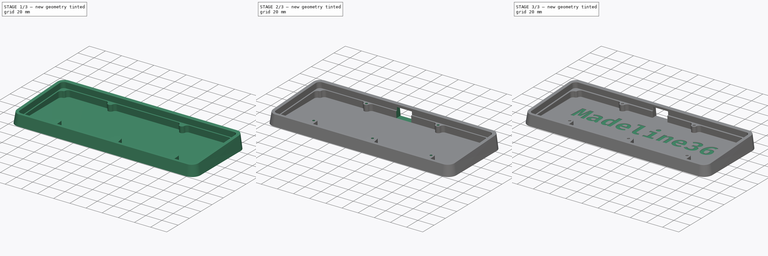
[diagram: build sequence overview — one tinted view per stage of 3, left to right]
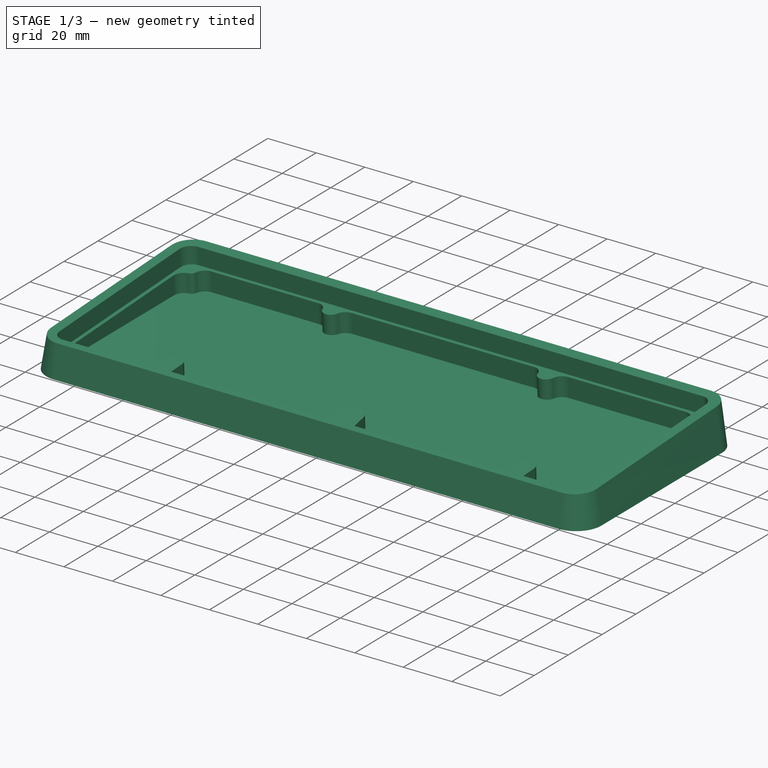
[diagram: stage 1 of 3 — iso view after this stage's code; geometry added in this stage tinted green]
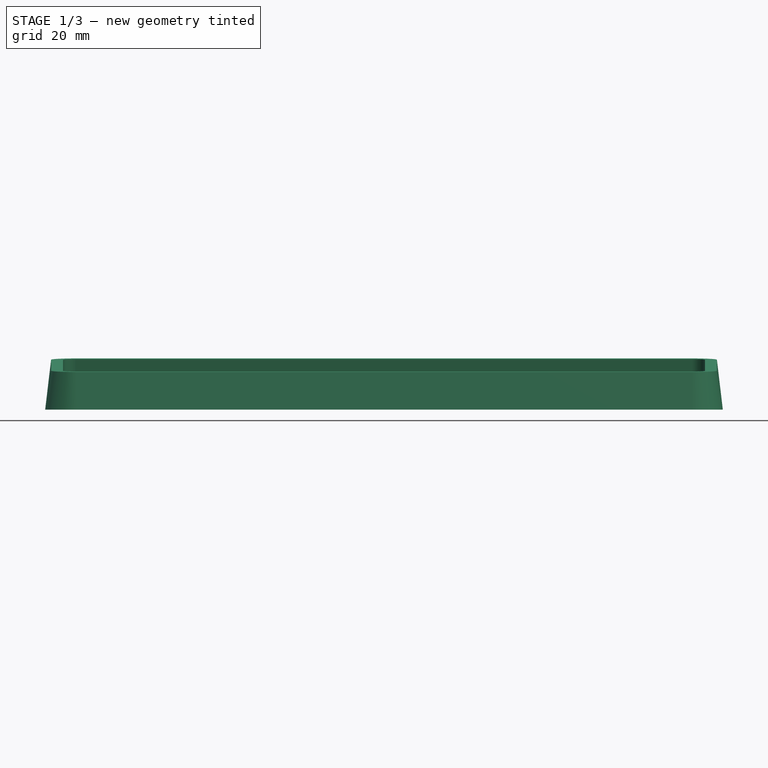
[diagram: stage 1 of 3 — front view after this stage's code; geometry added in this stage tinted green]
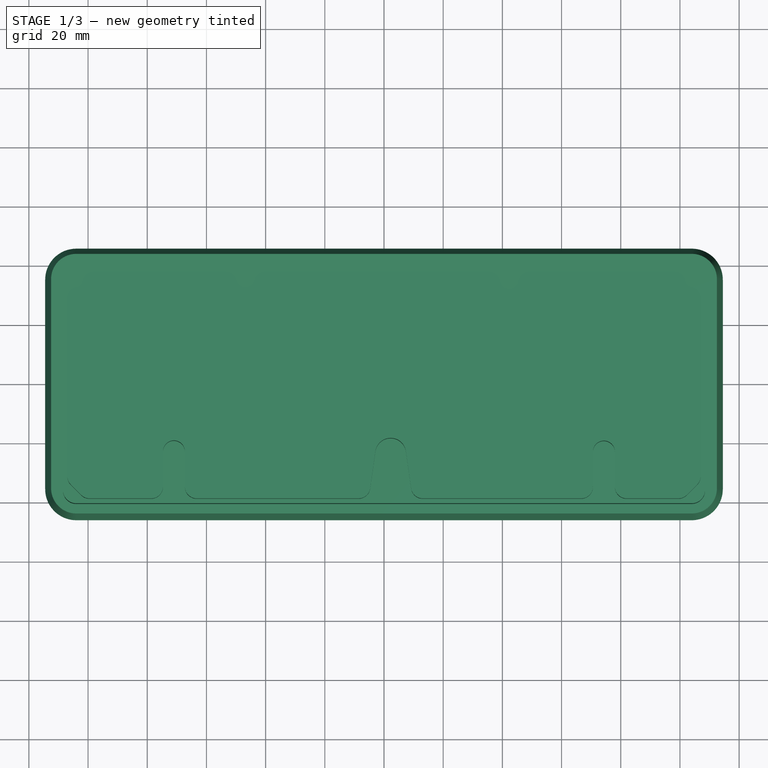
[diagram: stage 1 of 3 — top view after this stage's code; geometry added in this stage tinted green]
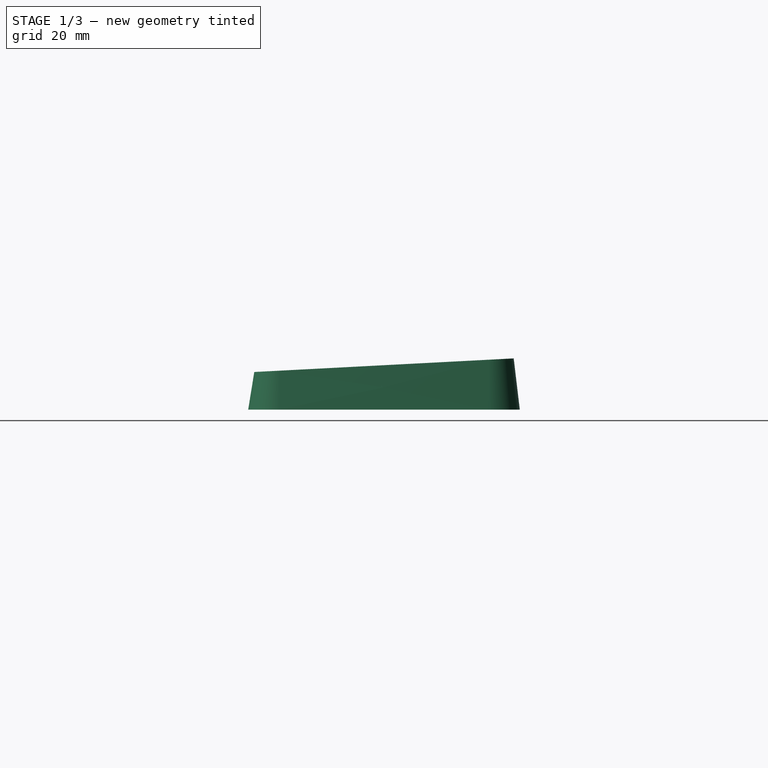
[diagram: stage 1 of 3 — right view after this stage's code; geometry added in this stage tinted green]
FCSTD DOCUMENT  (FreeCAD 1.0R)
Label: case
License: All rights reserved
LicenseURL: https://en.wikipedia.org/wiki/All_rights_reserved
objects: Sketcher::SketchObject×7, PartDesign::Pocket×4, PartDesign::AdditiveLoft×1, PartDesign::Hole×1, PartDesign::Chamfer×1, PartDesign::Fillet×1, PartDesign::Body×1
note: 39 computed .brp shape members not serialized (recipe doc carries the construction recipe); baked Part::Feature solids carry a one-line shape summary decoded from their .brp

FEATURE [Sketcher::SketchObject] Sketch
  ArcFitTolerance = 1e-06
  AttachmentSupport = -> [XY_Plane]
  FullyConstrained = false
  MakeInternals = false
  MapMode = 5
  sketch-geometry (8):
    g0: LineSegment StartX=114.485 StartY=-35.3883 StartZ=0 EndX=114.485 EndY=35.3883 EndZ=0
    g1: ArcOfCircle CenterX=103.985 CenterY=35.3883 CenterZ=0 NormalX=0 NormalY=0 NormalZ=1 AngleXU=0 Radius=10.5 StartAngle=0 EndAngle=1.5708
    g2: LineSegment StartX=-103.985 StartY=45.8883 StartZ=0 EndX=103.985 EndY=45.8883 EndZ=0
    g3: ArcOfCircle CenterX=-103.985 CenterY=35.3883 CenterZ=0 NormalX=0 NormalY=0 NormalZ=1 AngleXU=0 Radius=10.5 StartAngle=1.5708 EndAngle=3.14159
    g4: LineSegment StartX=-114.485 StartY=-35.3883 StartZ=0 EndX=-114.485 EndY=35.3883 EndZ=0
    g5: ArcOfCircle CenterX=-103.985 CenterY=-35.3883 CenterZ=0 NormalX=0 NormalY=0 NormalZ=1 AngleXU=0 Radius=10.5 StartAngle=3.14159 EndAngle=4.71239
    g6: LineSegment StartX=-103.985 StartY=-45.8883 StartZ=0 EndX=103.985 EndY=-45.8883 EndZ=0
    g7: ArcOfCircle CenterX=103.985 CenterY=-35.3883 CenterZ=0 NormalX=0 NormalY=0 NormalZ=1 AngleXU=0 Radius=10.5 StartAngle=4.71239 EndAngle=6.28319
  constraints (8):
    c: Coincident(g4,g5)
    c: Coincident(g3,g4)
    c: Coincident(g5,g6)
    c: Coincident(g2,g3)
    c: Coincident(g6,g7)
    c: Coincident(g1,g2)
    c: Coincident(g0,g7)
    c: Coincident(g0,g1)
FEATURE [Sketcher::SketchObject] Sketch001
  ArcFitTolerance = 1e-06
  AttachmentOffset = pos=(0,0,15) rot=(1,0,0;0.05236rad)
  AttachmentSupport = -> [XY_Plane]
  FullyConstrained = false
  MakeInternals = false
  MapMode = 5
  Placement = pos=(0,0,15) rot=(1,0,0;0.05236rad)
  sketch-geometry (8):
    g0: ArcOfCircle CenterX=-103.985 CenterY=35.3883 CenterZ=0 NormalX=0 NormalY=0 NormalZ=1 AngleXU=0 Radius=8.5 StartAngle=1.5708 EndAngle=3.14159
    g1: LineSegment StartX=-103.985 StartY=43.8883 StartZ=0 EndX=103.985 EndY=43.8883 EndZ=0
    g2: LineSegment StartX=-112.485 StartY=-35.3883 StartZ=0 EndX=-112.485 EndY=35.3883 EndZ=0
    g3: ArcOfCircle CenterX=-103.985 CenterY=-35.3883 CenterZ=0 NormalX=0 NormalY=0 NormalZ=1 AngleXU=0 Radius=8.5 StartAngle=3.14159 EndAngle=4.71239
    g4: LineSegment StartX=-103.985 StartY=-43.8883 StartZ=0 EndX=103.985 EndY=-43.8883 EndZ=0
    g5: ArcOfCircle CenterX=103.985 CenterY=-35.3883 CenterZ=0 NormalX=0 NormalY=0 NormalZ=1 AngleXU=0 Radius=8.5 StartAngle=4.71239 EndAngle=6.28319
    g6: LineSegment StartX=112.485 StartY=-35.3883 StartZ=0 EndX=112.485 EndY=35.3883 EndZ=0
    g7: ArcOfCircle CenterX=103.985 CenterY=35.3883 CenterZ=0 NormalX=0 NormalY=0 NormalZ=1 AngleXU=0 Radius=8.5 StartAngle=0 EndAngle=1.5708
  constraints (8):
    c: Coincident(g2,g3)
    c: Coincident(g0,g2)
    c: Coincident(g3,g4)
    c: Coincident(g0,g1)
    c: Coincident(g4,g5)
    c: Coincident(g1,g7)
    c: Coincident(g5,g6)
    c: Coincident(g6,g7)
FEATURE [PartDesign::AdditiveLoft] AdditiveLoft
  Closed = true
  Profile = -> Sketch
  Refine = true
  Ruled = true
  Sections = -> [Sketch001]
  Suppressed = false
FEATURE [Sketcher::SketchObject] Sketch003
  ArcFitTolerance = 1e-06
  AttachmentSupport = -> [AdditiveLoft]
  FullyConstrained = false
  MakeInternals = false
  MapMode = 5
  Placement = pos=(0,-0.783963,14.9589) rot=(1,0,0;0.05236rad)
  sketch-geometry (8):
    g0: ArcOfCircle CenterX=-103.985 CenterY=35.3883 CenterZ=0 NormalX=0 NormalY=0 NormalZ=1 AngleXU=0 Radius=4.5 StartAngle=1.5708 EndAngle=3.14159
    g1: LineSegment StartX=-103.985 StartY=39.8883 StartZ=0 EndX=103.985 EndY=39.8883 EndZ=0
    g2: ArcOfCircle CenterX=103.985 CenterY=35.3883 CenterZ=0 NormalX=0 NormalY=0 NormalZ=1 AngleXU=0 Radius=4.5 StartAngle=0 EndAngle=1.5708
    g3: LineSegment StartX=108.485 StartY=-35.3883 StartZ=0 EndX=108.485 EndY=35.3883 EndZ=0
    g4: ArcOfCircle CenterX=103.985 CenterY=-35.3883 CenterZ=0 NormalX=0 NormalY=0 NormalZ=1 AngleXU=0 Radius=4.5 StartAngle=4.71239 EndAngle=6.28319
    g5: LineSegment StartX=-103.985 StartY=-39.8883 StartZ=0 EndX=103.985 EndY=-39.8883 EndZ=0
    g6: ArcOfCircle CenterX=-103.985 CenterY=-35.3883 CenterZ=0 NormalX=0 NormalY=0 NormalZ=1 AngleXU=0 Radius=4.5 StartAngle=3.14159 EndAngle=4.71239
    g7: LineSegment StartX=-108.485 StartY=-35.3883 StartZ=0 EndX=-108.485 EndY=35.3883 EndZ=0
  constraints (8):
    c: Coincident(g6,g7)
    c: Coincident(g0,g7)
    c: Coincident(g5,g6)
    c: Coincident(g0,g1)
    c: Coincident(g4,g5)
    c: Coincident(g1,g2)
    c: Coincident(g3,g4)
    c: Coincident(g2,g3)
FEATURE [PartDesign::Pocket] Pocket
  BaseFeature = -> AdditiveLoft
  Direction = (0,0.052336,-0.99863)
  Length = 7
  Length2 = 5
  Offset = -3
  Profile = -> Sketch003
  ReferenceAxis = -> Sketch003 [N_Axis]
  Refine = true
  Suppressed = false
  Type = 0
FEATURE [Sketcher::SketchObject] Sketch002
  ArcFitTolerance = 1e-06
  AttachmentSupport = -> [Pocket]
  FullyConstrained = false
  MakeInternals = false
  MapMode = 5
  Placement = pos=(0,-0.417612,7.96851) rot=(1,0,0;0.05236rad)
  sketch-geometry (42):
    g0: ArcOfCircle CenterX=-97.8659 CenterY=34.3883 CenterZ=0 NormalX=0 NormalY=0 NormalZ=1 AngleXU=0 Radius=4 StartAngle=1.5708 EndAngle=2.97959
    g1: ArcOfCircle CenterX=-103.985 CenterY=35.3883 CenterZ=0 NormalX=0 NormalY=0 NormalZ=1 AngleXU=0 Radius=2.2 StartAngle=4.87439 EndAngle=6.12119
    g2: ArcOfCircle CenterX=-102.985 CenterY=29.2695 CenterZ=0 NormalX=0 NormalY=0 NormalZ=1 AngleXU=0 Radius=4 StartAngle=1.73279 EndAngle=3.14159
    g3: ArcOfCircle CenterX=97.8659 CenterY=34.3883 CenterZ=0 NormalX=0 NormalY=0 NormalZ=1 AngleXU=0 Radius=4 StartAngle=0.161998 EndAngle=1.5708
    g4: ArcOfCircle CenterX=103.985 CenterY=35.3883 CenterZ=0 NormalX=0 NormalY=0 NormalZ=1 AngleXU=0 Radius=2.2 StartAngle=3.30359 EndAngle=4.55039
    g5: ArcOfCircle CenterX=102.985 CenterY=29.2695 CenterZ=0 NormalX=0 NormalY=0 NormalZ=1 AngleXU=0 Radius=4 StartAngle=0 EndAngle=1.4088
    g6: ArcOfCircle CenterX=2.25 CenterY=-23.1801 CenterZ=0 NormalX=0 NormalY=0 NormalZ=1 AngleXU=0 Radius=5.2 StartAngle=0.139626 EndAngle=3.00197
    g7: LineSegment StartX=7.39939 StartY=-22.4564 StartZ=0 EndX=9.15456 EndY=-34.945 EndZ=0
    g8: ArcOfCircle CenterX=13.1156 CenterY=-34.3883 CenterZ=0 NormalX=0 NormalY=0 NormalZ=1 AngleXU=0 Radius=4 StartAngle=3.28122 EndAngle=4.71239
    g9: LineSegment StartX=-2.89939 StartY=-22.4564 StartZ=0 EndX=-4.65456 EndY=-34.945 EndZ=0
    g10: ArcOfCircle CenterX=-8.61563 CenterY=-34.3883 CenterZ=0 NormalX=0 NormalY=0 NormalZ=1 AngleXU=0 Radius=4 StartAngle=4.71239 EndAngle=6.14356
    g11: ArcOfCircle CenterX=-39.871 CenterY=34.3883 CenterZ=0 NormalX=0 NormalY=0 NormalZ=1 AngleXU=0 Radius=4 StartAngle=1.5708 EndAngle=2.87279
    g12: ArcOfCircle CenterX=-46.8124 CenterY=36.3005 CenterZ=0 NormalX=0 NormalY=0 NormalZ=1 AngleXU=0 Radius=3.2 StartAngle=3.4104 EndAngle=6.01438
    g13: LineSegment StartX=-97.8659 StartY=38.3883 StartZ=0 EndX=-53.7539 EndY=38.3883 EndZ=0
    g14: ArcOfCircle CenterX=-53.7539 CenterY=34.3883 CenterZ=0 NormalX=0 NormalY=0 NormalZ=1 AngleXU=0 Radius=4 StartAngle=0.268804 EndAngle=1.5708
    g15: LineSegment StartX=49.3962 StartY=38.3883 StartZ=0 EndX=97.8659 EndY=38.3883 EndZ=0
    g16: ArcOfCircle CenterX=49.3962 CenterY=34.3883 CenterZ=0 NormalX=0 NormalY=0 NormalZ=1 AngleXU=0 Radius=4 StartAngle=1.5708 EndAngle=2.96203
    g17: ArcOfCircle CenterX=42.312 CenterY=35.6742 CenterZ=0 NormalX=0 NormalY=0 NormalZ=1 AngleXU=0 Radius=3.2 StartAngle=3.32115 EndAngle=6.10363
    g18: LineSegment StartX=-39.871 StartY=38.3883 StartZ=0 EndX=35.2278 EndY=38.3883 EndZ=0
    g19: ArcOfCircle CenterX=35.2278 CenterY=34.3883 CenterZ=0 NormalX=0 NormalY=0 NormalZ=1 AngleXU=0 Radius=4 StartAngle=0.179558 EndAngle=1.5708
    g20: LineSegment StartX=106.985 StartY=-30.9031 StartZ=0 EndX=106.985 EndY=29.2695 EndZ=0
    g21: ArcOfCircle CenterX=102.985 CenterY=-30.9031 CenterZ=0 NormalX=0 NormalY=0 NormalZ=1 AngleXU=0 Radius=4 StartAngle=5.49779 EndAngle=6.28319
    g22: LineSegment StartX=102.328 StartY=-37.2168 StartZ=0 EndX=105.813 EndY=-33.7315 EndZ=0
    g23: ArcOfCircle CenterX=99.4994 CenterY=-34.3883 CenterZ=0 NormalX=0 NormalY=0 NormalZ=1 AngleXU=0 Radius=4 StartAngle=4.71239 EndAngle=5.49779
    g24: LineSegment StartX=-106.985 StartY=-30.9031 StartZ=0 EndX=-106.985 EndY=29.2695 EndZ=0
    g25: ArcOfCircle CenterX=-102.985 CenterY=-30.9031 CenterZ=0 NormalX=0 NormalY=0 NormalZ=1 AngleXU=0 Radius=4 StartAngle=3.14159 EndAngle=3.92699
    g26: LineSegment StartX=-105.813 StartY=-33.7315 StartZ=0 EndX=-102.328 EndY=-37.2168 EndZ=0
    g27: ArcOfCircle CenterX=-99.4994 CenterY=-34.3883 CenterZ=0 NormalX=0 NormalY=0 NormalZ=1 AngleXU=0 Radius=4 StartAngle=3.92699 EndAngle=4.71239
    g28: ArcOfCircle CenterX=74.3004 CenterY=-22.599 CenterZ=0 NormalX=0 NormalY=0 NormalZ=1 AngleXU=0 Radius=3.7 StartAngle=6.28318 EndAngle=9.42478
    g29: ArcOfCircle CenterX=-70.9834 CenterY=-22.5163 CenterZ=0 NormalX=0 NormalY=0 NormalZ=1 AngleXU=0 Radius=3.7 StartAngle=0 EndAngle=3.14159
    g30: LineSegment StartX=-74.6834 StartY=-22.5163 StartZ=0 EndX=-74.6834 EndY=-34.3883 EndZ=0
    g31: LineSegment StartX=-99.4994 StartY=-38.3883 StartZ=0 EndX=-78.6834 EndY=-38.3883 EndZ=0
    g32: ArcOfCircle CenterX=-78.6834 CenterY=-34.3883 CenterZ=0 NormalX=0 NormalY=0 NormalZ=1 AngleXU=0 Radius=4 StartAngle=4.71239 EndAngle=6.28319
    g33: LineSegment StartX=-67.2834 StartY=-22.5163 StartZ=0 EndX=-67.2834 EndY=-34.3883 EndZ=0
    g34: LineSegment StartX=-63.2834 StartY=-38.3883 StartZ=0 EndX=-8.61563 EndY=-38.3883 EndZ=0
    g35: ArcOfCircle CenterX=-63.2834 CenterY=-34.3883 CenterZ=0 NormalX=0 NormalY=0 NormalZ=1 AngleXU=0 Radius=4 StartAngle=3.14159 EndAngle=4.71239
    g36: LineSegment StartX=78.0004 StartY=-22.599 StartZ=0 EndX=78.0004 EndY=-34.3883 EndZ=0
    g37: LineSegment StartX=82.0004 StartY=-38.3883 StartZ=0 EndX=99.4994 EndY=-38.3883 EndZ=0
    g38: ArcOfCircle CenterX=82.0004 CenterY=-34.3883 CenterZ=0 NormalX=0 NormalY=0 NormalZ=1 AngleXU=0 Radius=4 StartAngle=3.14159 EndAngle=4.71239
    g39: LineSegment StartX=70.6004 StartY=-22.599 StartZ=0 EndX=70.6004 EndY=-34.3883 EndZ=0
    g40: LineSegment StartX=13.1156 StartY=-38.3883 StartZ=0 EndX=66.6004 EndY=-38.3883 EndZ=0
    g41: ArcOfCircle CenterX=66.6004 CenterY=-34.3883 CenterZ=0 NormalX=0 NormalY=0 NormalZ=1 AngleXU=0 Radius=4 StartAngle=4.71239 EndAngle=6.28319
  constraints (42):
    c: Coincident(g24,g25)
    c: Coincident(g2,g24)
    c: Coincident(g25,g26)
    c: Coincident(g1,g2)
    c: Coincident(g26,g27)
    c: Coincident(g0,g1)
    c: Coincident(g27,g31)
    c: Coincident(g0,g13)
    c: Coincident(g31,g32)
    c: Coincident(g30,g32)
    c: Coincident(g29,g30)
    c: Coincident(g33,g35)
    c: Coincident(g29,g33)
    c: Coincident(g34,g35)
    c: Coincident(g13,g14)
    c: Coincident(g12,g14)
    c: Coincident(g11,g12)
    c: Coincident(g11,g18)
    c: Coincident(g10,g34)
    c: Coincident(g9,g10)
    c: Coincident(g6,g9)
    c: Coincident(g6,g7)
    c: Coincident(g7,g8)
    c: Coincident(g8,g40)
    c: Coincident(g18,g19)
    c: Coincident(g17,g19)
    c: Coincident(g16,g17)
    c: Coincident(g15,g16)
    c: Coincident(g40,g41)
    c: Coincident(g39,g41)
    c: Coincident(g28,g39)
    c: Coincident(g36,g38)
    c: Coincident(g28,g36)
    c: Coincident(g37,g38)
    c: Coincident(g3,g15)
    c: Coincident(g23,g37)
    c: Coincident(g3,g4)
    c: Coincident(g22,g23)
    c: Coincident(g4,g5)
    c: Coincident(g21,g22)
    c: Coincident(g20,g21)
    c: Coincident(g5,g20)
FEATURE [PartDesign::Pocket] Pocket001
  BaseFeature = -> Pocket
  Direction = (0,0.052336,-0.99863)
  Length = 0
  Length2 = 5
  Offset = -2
  Profile = -> Sketch002
  ReferenceAxis = -> Sketch002 [N_Axis]
  Refine = true
  Suppressed = false
  Type = 3
  UpToFace = -> Pocket [Face1]
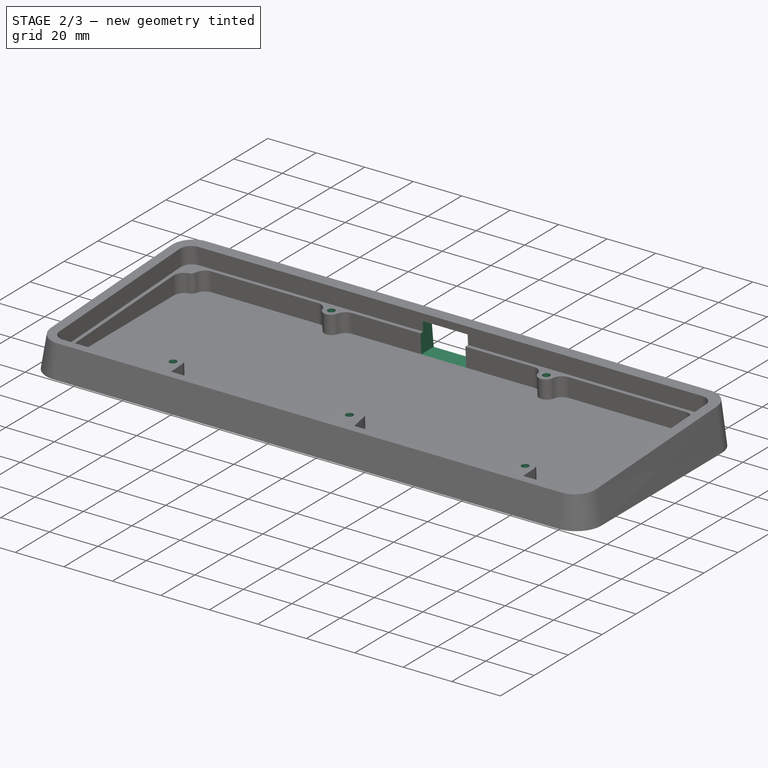
[diagram: stage 2 of 3 — iso view after this stage's code; geometry added in this stage tinted green]
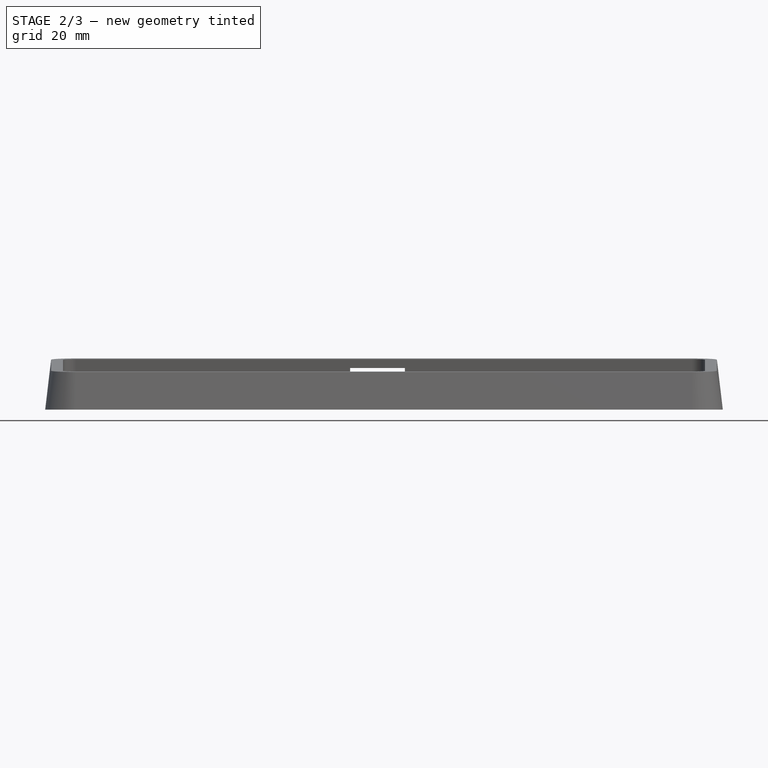
[diagram: stage 2 of 3 — front view after this stage's code; geometry added in this stage tinted green]
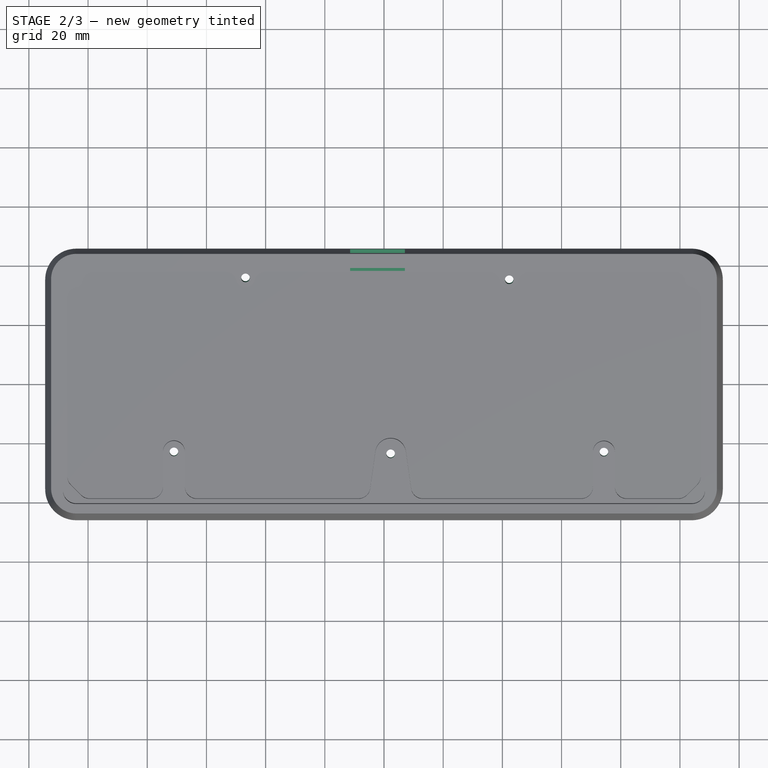
[diagram: stage 2 of 3 — top view after this stage's code; geometry added in this stage tinted green]
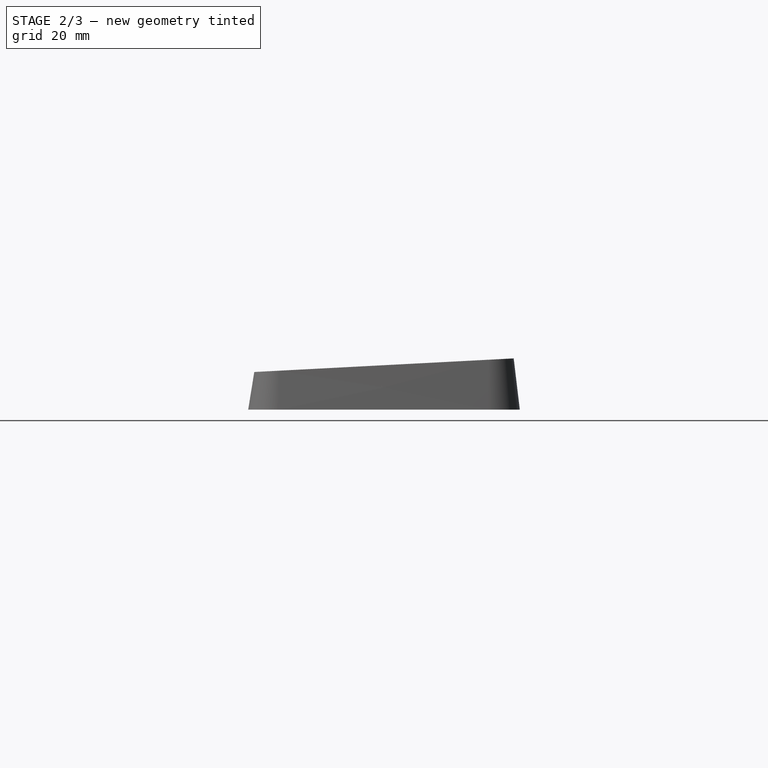
[diagram: stage 2 of 3 — right view after this stage's code; geometry added in this stage tinted green]
FEATURE [Sketcher::SketchObject] Sketch004
  ArcFitTolerance = 1e-06
  AttachmentSupport = -> [Pocket]
  FullyConstrained = false
  MakeInternals = false
  MapMode = 5
  Placement = pos=(0,-0.417612,7.96851) rot=(1,0,0;0.05236rad)
  sketch-geometry (5):
    g0: Circle CenterX=74.3004 CenterY=-22.599 CenterZ=0 NormalX=0 NormalY=0 NormalZ=-1 AngleXU=0 Radius=1.2
    g1: Circle CenterX=-70.9834 CenterY=-22.5163 CenterZ=0 NormalX=0 NormalY=0 NormalZ=-1 AngleXU=0 Radius=1.2
    g2: Circle CenterX=2.25 CenterY=-23.1801 CenterZ=0 NormalX=0 NormalY=0 NormalZ=-1 AngleXU=0 Radius=1.2
    g3: Circle CenterX=-46.8124 CenterY=36.3005 CenterZ=0 NormalX=0 NormalY=0 NormalZ=-1 AngleXU=0 Radius=1.2
    g4: Circle CenterX=42.312 CenterY=35.6742 CenterZ=0 NormalX=0 NormalY=0 NormalZ=-1 AngleXU=0 Radius=1.2
FEATURE [PartDesign::Hole] Hole
  BaseFeature = -> Pocket001
  CustomThreadClearance = 0
  Depth = 499.513
  DepthType = 1
  Diameter = 2.9
  DrillForDepth = false
  DrillPoint = 1
  DrillPointAngle = 118
  HoleCutCountersinkAngle = 90
  HoleCutCustomValues = false
  HoleCutDepth = 0
  HoleCutDiameter = 6.1
  HoleCutType = 0
  ModelThread = false
  Profile = -> Sketch004
  Refine = true
  Suppressed = false
  Tapered = false
  TaperedAngle = 103
  ThreadClass = 0
  ThreadDepth = 499.513
  ThreadDepthType = 0
  ThreadDirection = 0
  ThreadFit = 0
  ThreadSize = 8
  ThreadType = 1
  Threaded = false
  UseCustomThreadClearance = false
FEATURE [Sketcher::SketchObject] Sketch005
  ArcFitTolerance = 1e-06
  AttachmentSupport = -> [Pocket001]
  FullyConstrained = false
  MakeInternals = false
  MapMode = 5
  Placement = pos=(0,0,1.99726) rot=(0,0,1;0rad)
  sketch-geometry (4):
    g0: LineSegment StartX=-11.4562 StartY=60.0354 StartZ=0 EndX=-11.4562 EndY=36.0354 EndZ=0
    g1: LineSegment StartX=-11.4562 StartY=36.0354 StartZ=0 EndX=7.04379 EndY=36.0354 EndZ=0
    g2: LineSegment StartX=7.04379 StartY=36.0354 StartZ=0 EndX=7.04379 EndY=60.0354 EndZ=0
    g3: LineSegment StartX=7.04379 StartY=60.0354 StartZ=0 EndX=-11.4562 EndY=60.0354 EndZ=0
  constraints (4):
    c: Coincident(g0,g1)
    c: Coincident(g0,g3)
    c: Coincident(g1,g2)
    c: Coincident(g2,g3)
FEATURE [PartDesign::Pocket] Pocket002
  BaseFeature = -> Hole
  Direction = (0,0,-1)
  Length = 0
  Length2 = 5
  Offset = 4
  Profile = -> Sketch005
  ReferenceAxis = -> Sketch005 [N_Axis]
  Refine = true
  Suppressed = false
  Type = 3
  UpToFace = -> Hole [Face16]
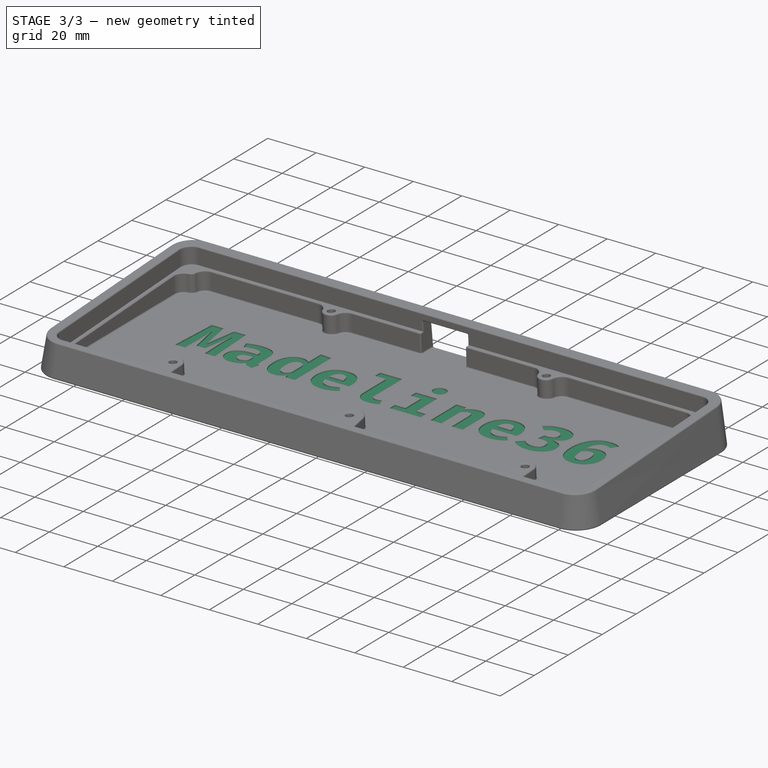
[diagram: stage 3 of 3 — iso view after this stage's code; geometry added in this stage tinted green]
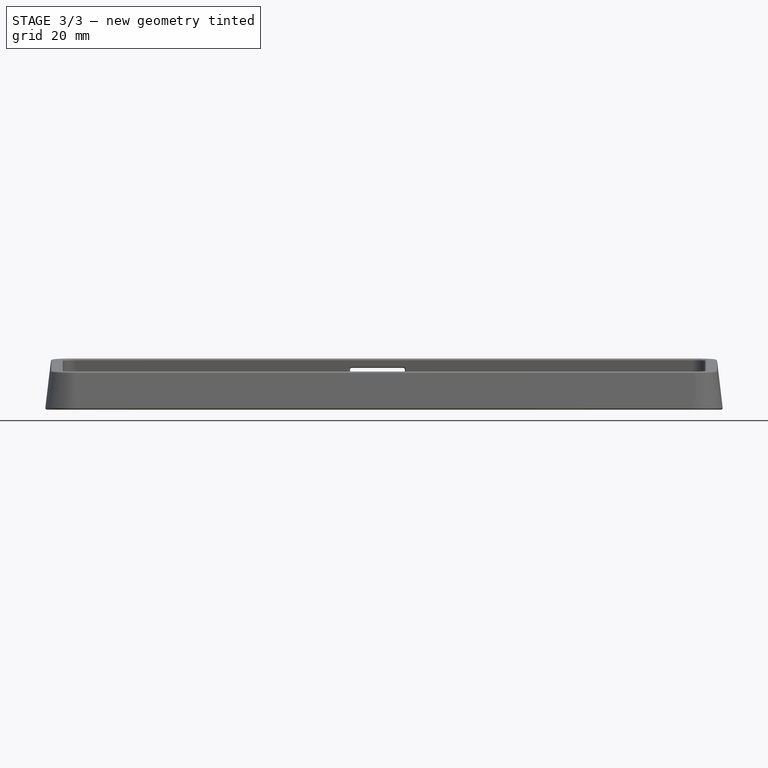
[diagram: stage 3 of 3 — front view after this stage's code; geometry added in this stage tinted green]
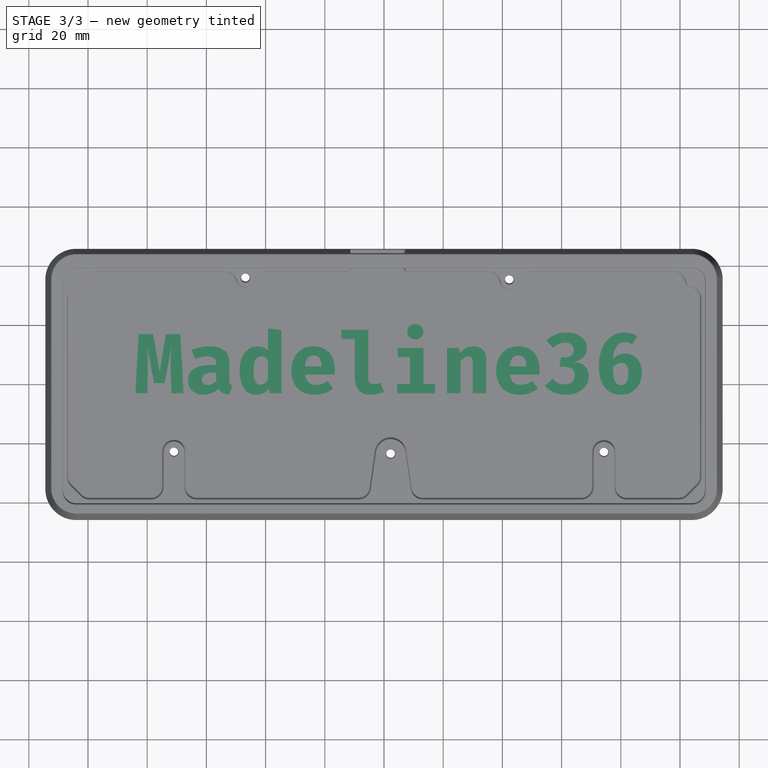
[diagram: stage 3 of 3 — top view after this stage's code; geometry added in this stage tinted green]
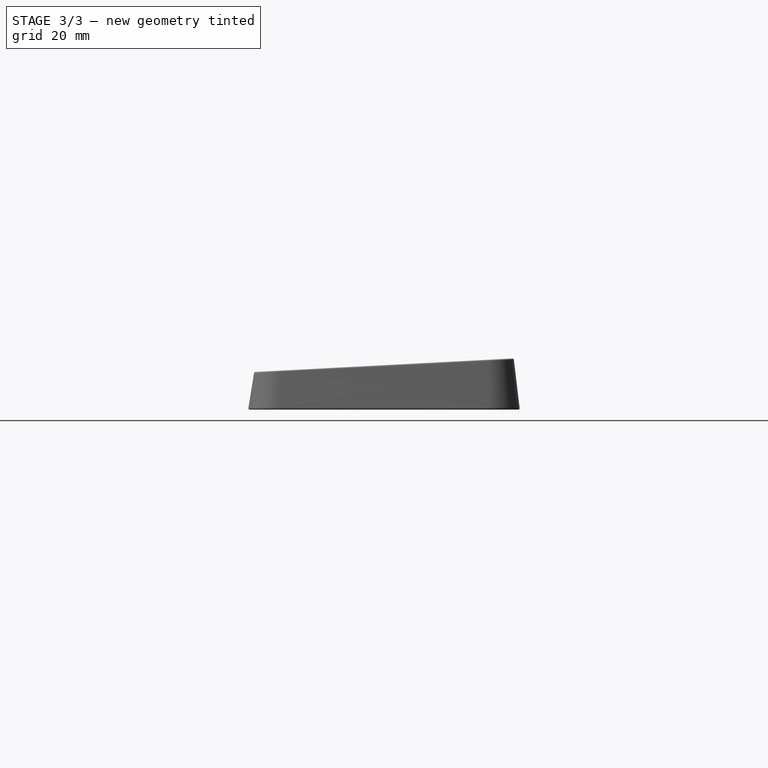
[diagram: stage 3 of 3 — right view after this stage's code; geometry added in this stage tinted green]
FEATURE [PartDesign::Chamfer] Chamfer
  Angle = 45
  Base = -> Pocket002 [Edge10,Edge12,Edge9,Edge11,Edge13]
  BaseFeature = -> Pocket002
  ChamferType = 0
  FlipDirection = false
  Refine = true
  Size = 3
  Size2 = 1
  SupportTransform = false
  Suppressed = false
  UseAllEdges = false
FEATURE [PartDesign::Fillet] Fillet
  Base = -> Chamfer [Face19,Face18,Face20,Face17,Edge159,Edge115,Edge109,Edge113,Edge45,Edge111,Face1,Face16]
  BaseFeature = -> Chamfer
  Radius = 0.5
  Refine = true
  SupportTransform = false
  Suppressed = false
  UseAllEdges = false
FEATURE [Sketcher::SketchObject] Sketch006
  ArcFitTolerance = 1e-06
  AttachmentSupport = -> [Pocket001]
  FullyConstrained = false
  MakeInternals = false
  Placement = pos=(0,0,1.99726) rot=(0,0,1;0rad)
  sketch-geometry (229):
    g0: LineSegment StartX=-68.8198 StartY=17 StartZ=0 EndX=-67.6941 EndY=-3 EndZ=0
    g1: LineSegment StartX=-73.6826 StartY=17 StartZ=0 EndX=-68.8198 EndY=17 EndZ=0
    g2: LineSegment StartX=-75.7893 StartY=4.0703 StartZ=0 EndX=-73.6826 EndY=17 EndZ=0
    g3: LineSegment StartX=-78.0114 StartY=17 StartZ=0 EndX=-75.7893 EndY=4.0703 EndZ=0
    g4: LineSegment StartX=-82.8743 StartY=17 StartZ=0 EndX=-78.0114 EndY=17 EndZ=0
    g5: LineSegment StartX=-84 StartY=-3 StartZ=0 EndX=-82.8743 EndY=17 EndZ=0
    g6: LineSegment StartX=-79.945 StartY=-3 StartZ=0 EndX=-84 EndY=-3 EndZ=0
    g7: LineSegment StartX=-79.8003 StartY=5.48454 StartZ=0 EndX=-79.945 EndY=-3 EndZ=0
    g8: BSplineCurve PolesCount=3 KnotsCount=2 Degree=2 IsPeriodic=0
    g9: BSplineCurve PolesCount=3 KnotsCount=2 Degree=2 IsPeriodic=0
    g10: BSplineCurve PolesCount=3 KnotsCount=2 Degree=2 IsPeriodic=0
    g11: LineSegment StartX=-77.6506 StartY=0.405542 StartZ=0 EndX=-80.0751 EndY=12.9744 EndZ=0
    g12: LineSegment StartX=-74.0719 StartY=0.405542 StartZ=0 EndX=-77.6506 EndY=0.405542 EndZ=0
    g13: LineSegment StartX=-71.8205 StartY=12.9744 StartZ=0 EndX=-74.0719 EndY=0.405542 EndZ=0
    g14: BSplineCurve PolesCount=3 KnotsCount=2 Degree=2 IsPeriodic=0
    g15: BSplineCurve PolesCount=3 KnotsCount=2 Degree=2 IsPeriodic=0
    g16: BSplineCurve PolesCount=3 KnotsCount=2 Degree=2 IsPeriodic=0
    g17: LineSegment StartX=-71.8205 StartY=-3 StartZ=0 EndX=-72.0659 EndY=5.5569 EndZ=0
    g18: LineSegment StartX=-67.6941 StartY=-3 StartZ=0 EndX=-71.8205 EndY=-3 EndZ=0
    g19: BSplineCurve PolesCount=3 KnotsCount=2 Degree=2 IsPeriodic=0
    g20: LineSegment StartX=-52.2913 StartY=7.41814 StartZ=0 EndX=-52.2913 EndY=1.41585 EndZ=0
    g21: BSplineCurve PolesCount=3 KnotsCount=2 Degree=2 IsPeriodic=0
    g22: BSplineCurve PolesCount=3 KnotsCount=2 Degree=2 IsPeriodic=0
    g23: BSplineCurve PolesCount=3 KnotsCount=2 Degree=2 IsPeriodic=0
    g24: BSplineCurve PolesCount=3 KnotsCount=2 Degree=2 IsPeriodic=0
    g25: LineSegment StartX=-63.9066 StartY=8.65926 StartZ=0 EndX=-64.9599 EndY=11.6893 EndZ=0
    g26: BSplineCurve PolesCount=3 KnotsCount=2 Degree=2 IsPeriodic=0
    g27: BSplineCurve PolesCount=3 KnotsCount=2 Degree=2 IsPeriodic=0
    g28: BSplineCurve PolesCount=3 KnotsCount=2 Degree=2 IsPeriodic=0
    g29: LineSegment StartX=-56.6778 StartY=6.5379 StartZ=0 EndX=-56.6778 EndY=7.11495 EndZ=0
    g30: LineSegment StartX=-58.7406 StartY=6.5379 StartZ=0 EndX=-56.6778 EndY=6.5379 EndZ=0
    g31: BSplineCurve PolesCount=3 KnotsCount=2 Degree=2 IsPeriodic=0
    g32: BSplineCurve PolesCount=3 KnotsCount=2 Degree=2 IsPeriodic=0
    g33: BSplineCurve PolesCount=3 KnotsCount=2 Degree=2 IsPeriodic=0
    g34: BSplineCurve PolesCount=3 KnotsCount=2 Degree=2 IsPeriodic=0
    g35: BSplineCurve PolesCount=3 KnotsCount=2 Degree=2 IsPeriodic=0
    g36: BSplineCurve PolesCount=3 KnotsCount=2 Degree=2 IsPeriodic=0
    g37: BSplineCurve PolesCount=3 KnotsCount=2 Degree=2 IsPeriodic=0
    g38: BSplineCurve PolesCount=3 KnotsCount=2 Degree=2 IsPeriodic=0
    g39: LineSegment StartX=-51.281 StartY=-0.431646 StartZ=0 EndX=-52.2189 EndY=-3.43325 EndZ=0
    g40: BSplineCurve PolesCount=3 KnotsCount=2 Degree=2 IsPeriodic=0
    g41: BSplineCurve PolesCount=3 KnotsCount=2 Degree=2 IsPeriodic=0
    g42: BSplineCurve PolesCount=3 KnotsCount=2 Degree=2 IsPeriodic=0
    g43: BSplineCurve PolesCount=3 KnotsCount=2 Degree=2 IsPeriodic=0
    g44: BSplineCurve PolesCount=3 KnotsCount=2 Degree=2 IsPeriodic=0
    g45: BSplineCurve PolesCount=3 KnotsCount=2 Degree=2 IsPeriodic=0
    g46: LineSegment StartX=-56.6778 StartY=3.94115 StartZ=0 EndX=-57.8026 EndY=3.94115 EndZ=0
    g47: LineSegment StartX=-56.6778 StartY=1.4589 StartZ=0 EndX=-56.6778 EndY=3.94115 EndZ=0
    g48: BSplineCurve PolesCount=3 KnotsCount=2 Degree=2 IsPeriodic=0
    g49: LineSegment StartX=-39.182 StartY=18.8905 StartZ=0 EndX=-34.6224 EndY=18.4142 EndZ=0
    g50: LineSegment StartX=-39.182 StartY=11.4154 StartZ=0 EndX=-39.182 EndY=18.8905 EndZ=0
    g51: BSplineCurve PolesCount=3 KnotsCount=2 Degree=2 IsPeriodic=0
    g52: BSplineCurve PolesCount=3 KnotsCount=2 Degree=2 IsPeriodic=0
    g53: BSplineCurve PolesCount=3 KnotsCount=2 Degree=2 IsPeriodic=0
    g54: BSplineCurve PolesCount=3 KnotsCount=2 Degree=2 IsPeriodic=0
    g55: BSplineCurve PolesCount=3 KnotsCount=2 Degree=2 IsPeriodic=0
    g56: BSplineCurve PolesCount=3 KnotsCount=2 Degree=2 IsPeriodic=0
    g57: BSplineCurve PolesCount=3 KnotsCount=2 Degree=2 IsPeriodic=0
    g58: BSplineCurve PolesCount=3 KnotsCount=2 Degree=2 IsPeriodic=0
    g59: BSplineCurve PolesCount=3 KnotsCount=2 Degree=2 IsPeriodic=0
    g60: LineSegment StartX=-38.6627 StartY=-3 StartZ=0 EndX=-38.8935 EndY=-1.31188 EndZ=0
    g61: LineSegment StartX=-34.6224 StartY=-3 StartZ=0 EndX=-38.6627 EndY=-3 EndZ=0
    g62: LineSegment StartX=-34.6224 StartY=18.4142 StartZ=0 EndX=-34.6224 EndY=-3 EndZ=0
    g63: BSplineCurve PolesCount=3 KnotsCount=2 Degree=2 IsPeriodic=0
    g64: BSplineCurve PolesCount=3 KnotsCount=2 Degree=2 IsPeriodic=0
    g65: BSplineCurve PolesCount=3 KnotsCount=2 Degree=2 IsPeriodic=0
    g66: LineSegment StartX=-39.182 StartY=1.63201 StartZ=0 EndX=-39.182 EndY=8.24067 EndZ=0
    g67: BSplineCurve PolesCount=3 KnotsCount=2 Degree=2 IsPeriodic=0
    g68: BSplineCurve PolesCount=3 KnotsCount=2 Degree=2 IsPeriodic=0
    g69: BSplineCurve PolesCount=3 KnotsCount=2 Degree=2 IsPeriodic=0
    g70: BSplineCurve PolesCount=3 KnotsCount=2 Degree=2 IsPeriodic=0
    g71: BSplineCurve PolesCount=3 KnotsCount=2 Degree=2 IsPeriodic=0
    g72: BSplineCurve PolesCount=3 KnotsCount=2 Degree=2 IsPeriodic=0
    g73: BSplineCurve PolesCount=3 KnotsCount=2 Degree=2 IsPeriodic=0
    g74: LineSegment StartX=-16.7227 StartY=3.33478 StartZ=0 EndX=-26.6508 EndY=3.33478 EndZ=0
    g75: BSplineCurve PolesCount=3 KnotsCount=2 Degree=2 IsPeriodic=0
    g76: BSplineCurve PolesCount=3 KnotsCount=2 Degree=2 IsPeriodic=0
    g77: BSplineCurve PolesCount=3 KnotsCount=2 Degree=2 IsPeriodic=0
    g78: BSplineCurve PolesCount=3 KnotsCount=2 Degree=2 IsPeriodic=0
    g79: BSplineCurve PolesCount=3 KnotsCount=2 Degree=2 IsPeriodic=0
    g80: BSplineCurve PolesCount=3 KnotsCount=2 Degree=2 IsPeriodic=0
    g81: BSplineCurve PolesCount=3 KnotsCount=2 Degree=2 IsPeriodic=0
    g82: BSplineCurve PolesCount=3 KnotsCount=2 Degree=2 IsPeriodic=0
    g83: BSplineCurve PolesCount=3 KnotsCount=2 Degree=2 IsPeriodic=0
    g84: BSplineCurve PolesCount=3 KnotsCount=2 Degree=2 IsPeriodic=0
    g85: BSplineCurve PolesCount=3 KnotsCount=2 Degree=2 IsPeriodic=0
    g86: BSplineCurve PolesCount=3 KnotsCount=2 Degree=2 IsPeriodic=0
    g87: BSplineCurve PolesCount=3 KnotsCount=2 Degree=2 IsPeriodic=0
    g88: LineSegment StartX=-19.0465 StartY=1.09801 StartZ=0 EndX=-17.2136 EndY=-1.38425 EndZ=0
    g89: BSplineCurve PolesCount=3 KnotsCount=2 Degree=2 IsPeriodic=0
    g90: BSplineCurve PolesCount=3 KnotsCount=2 Degree=2 IsPeriodic=0
    g91: BSplineCurve PolesCount=3 KnotsCount=2 Degree=2 IsPeriodic=0
    g92: BSplineCurve PolesCount=3 KnotsCount=2 Degree=2 IsPeriodic=0
    g93: BSplineCurve PolesCount=3 KnotsCount=2 Degree=2 IsPeriodic=0
    g94: BSplineCurve PolesCount=3 KnotsCount=2 Degree=2 IsPeriodic=0
    g95: LineSegment StartX=-26.7085 StartY=6.07625 StartZ=0 EndX=-21.0808 EndY=6.07625 EndZ=0
    g96: BSplineCurve PolesCount=3 KnotsCount=2 Degree=2 IsPeriodic=0
    g97: LineSegment StartX=-5.31715 StartY=18.4142 StartZ=0 EndX=-5.31715 EndY=1.81978 EndZ=0
    g98: LineSegment StartX=-14.3934 StartY=18.4142 StartZ=0 EndX=-5.31715 EndY=18.4142 EndZ=0
    g99: LineSegment StartX=-14.3934 StartY=15.2972 StartZ=0 EndX=-14.3934 EndY=18.4142 EndZ=0
    g100: LineSegment StartX=-9.8768 StartY=15.2972 StartZ=0 EndX=-14.3934 EndY=15.2972 EndZ=0
    g101: LineSegment StartX=-9.8768 StartY=2.38218 StartZ=0 EndX=-9.8768 EndY=15.2972 EndZ=0
    g102: BSplineCurve PolesCount=3 KnotsCount=2 Degree=2 IsPeriodic=0
    g103: BSplineCurve PolesCount=3 KnotsCount=2 Degree=2 IsPeriodic=0
    g104: BSplineCurve PolesCount=3 KnotsCount=2 Degree=2 IsPeriodic=0
    g105: BSplineCurve PolesCount=3 KnotsCount=2 Degree=2 IsPeriodic=0
    g106: LineSegment StartX=-1.17518 StartY=0.564003 StartZ=0 EndX=-0.0787725 EndY=-2.48065 EndZ=0
    g107: BSplineCurve PolesCount=3 KnotsCount=2 Degree=2 IsPeriodic=0
    g108: BSplineCurve PolesCount=3 KnotsCount=2 Degree=2 IsPeriodic=0
    g109: BSplineCurve PolesCount=3 KnotsCount=2 Degree=2 IsPeriodic=0
    g110: BSplineCurve PolesCount=3 KnotsCount=2 Degree=2 IsPeriodic=0
    g111: LineSegment StartX=13.3474 StartY=12.3249 StartZ=0 EndX=13.3474 EndY=0.117014 EndZ=0
    g112: LineSegment StartX=4.58805 StartY=12.3249 StartZ=0 EndX=13.3474 EndY=12.3249 EndZ=0
    g113: LineSegment StartX=4.58805 StartY=9.20792 StartZ=0 EndX=4.58805 EndY=12.3249 EndZ=0
    g114: LineSegment StartX=8.78773 StartY=9.20792 StartZ=0 EndX=4.58805 EndY=9.20792 EndZ=0
    g115: LineSegment StartX=8.78773 StartY=0.117014 StartZ=0 EndX=8.78773 EndY=9.20792 EndZ=0
    g116: LineSegment StartX=4.44424 StartY=0.117014 StartZ=0 EndX=8.78773 EndY=0.117014 EndZ=0
    g117: LineSegment StartX=4.44424 StartY=-3 StartZ=0 EndX=4.44424 EndY=0.117014 EndZ=0
    g118: LineSegment StartX=17.243 StartY=-3 StartZ=0 EndX=4.44424 EndY=-3 EndZ=0
    g119: LineSegment StartX=17.243 StartY=0.117014 StartZ=0 EndX=17.243 EndY=-3 EndZ=0
    g120: LineSegment StartX=13.3474 StartY=0.117014 StartZ=0 EndX=17.243 EndY=0.117014 EndZ=0
    g121: BSplineCurve PolesCount=3 KnotsCount=2 Degree=2 IsPeriodic=0
    g122: BSplineCurve PolesCount=3 KnotsCount=2 Degree=2 IsPeriodic=0
    g123: BSplineCurve PolesCount=3 KnotsCount=2 Degree=2 IsPeriodic=0
    g124: BSplineCurve PolesCount=3 KnotsCount=2 Degree=2 IsPeriodic=0
    g125: BSplineCurve PolesCount=3 KnotsCount=2 Degree=2 IsPeriodic=0
    g126: BSplineCurve PolesCount=3 KnotsCount=2 Degree=2 IsPeriodic=0
    g127: BSplineCurve PolesCount=3 KnotsCount=2 Degree=2 IsPeriodic=0
    g128: BSplineCurve PolesCount=3 KnotsCount=2 Degree=2 IsPeriodic=0
    g129: LineSegment StartX=21.2759 StartY=-3 StartZ=0 EndX=21.2759 EndY=12.3249 EndZ=0
    g130: LineSegment StartX=25.8356 StartY=-3 StartZ=0 EndX=21.2759 EndY=-3 EndZ=0
    g131: LineSegment StartX=25.8356 StartY=7.72132 StartZ=0 EndX=25.8356 EndY=-3 EndZ=0
    g132: BSplineCurve PolesCount=3 KnotsCount=2 Degree=2 IsPeriodic=0
    g133: BSplineCurve PolesCount=3 KnotsCount=2 Degree=2 IsPeriodic=0
    g134: BSplineCurve PolesCount=3 KnotsCount=2 Degree=2 IsPeriodic=0
    g135: BSplineCurve PolesCount=3 KnotsCount=2 Degree=2 IsPeriodic=0
    g136: LineSegment StartX=29.9913 StartY=-3 StartZ=0 EndX=29.9913 EndY=6.94184 EndZ=0
    g137: LineSegment StartX=34.551 StartY=-3 StartZ=0 EndX=29.9913 EndY=-3 EndZ=0
    g138: LineSegment StartX=34.551 StartY=8.25532 StartZ=0 EndX=34.551 EndY=-3 EndZ=0
    g139: BSplineCurve PolesCount=3 KnotsCount=2 Degree=2 IsPeriodic=0
    g140: BSplineCurve PolesCount=3 KnotsCount=2 Degree=2 IsPeriodic=0
    g141: BSplineCurve PolesCount=3 KnotsCount=2 Degree=2 IsPeriodic=0
    g142: BSplineCurve PolesCount=3 KnotsCount=2 Degree=2 IsPeriodic=0
    g143: LineSegment StartX=25.2585 StartY=12.3249 StartZ=0 EndX=25.5755 EndY=10.5498 EndZ=0
    g144: LineSegment StartX=21.2759 StartY=12.3249 StartZ=0 EndX=25.2585 EndY=12.3249 EndZ=0
    g145: BSplineCurve PolesCount=3 KnotsCount=2 Degree=2 IsPeriodic=0
    g146: LineSegment StartX=52.4507 StartY=3.33478 StartZ=0 EndX=42.5226 EndY=3.33478 EndZ=0
    g147: BSplineCurve PolesCount=3 KnotsCount=2 Degree=2 IsPeriodic=0
    g148: BSplineCurve PolesCount=3 KnotsCount=2 Degree=2 IsPeriodic=0
    g149: BSplineCurve PolesCount=3 KnotsCount=2 Degree=2 IsPeriodic=0
    g150: BSplineCurve PolesCount=3 KnotsCount=2 Degree=2 IsPeriodic=0
    g151: BSplineCurve PolesCount=3 KnotsCount=2 Degree=2 IsPeriodic=0
    g152: BSplineCurve PolesCount=3 KnotsCount=2 Degree=2 IsPeriodic=0
    g153: BSplineCurve PolesCount=3 KnotsCount=2 Degree=2 IsPeriodic=0
    g154: BSplineCurve PolesCount=3 KnotsCount=2 Degree=2 IsPeriodic=0
    g155: BSplineCurve PolesCount=3 KnotsCount=2 Degree=2 IsPeriodic=0
    g156: BSplineCurve PolesCount=3 KnotsCount=2 Degree=2 IsPeriodic=0
    g157: BSplineCurve PolesCount=3 KnotsCount=2 Degree=2 IsPeriodic=0
    g158: BSplineCurve PolesCount=3 KnotsCount=2 Degree=2 IsPeriodic=0
    g159: BSplineCurve PolesCount=3 KnotsCount=2 Degree=2 IsPeriodic=0
    g160: LineSegment StartX=50.1269 StartY=1.09801 StartZ=0 EndX=51.9597 EndY=-1.38425 EndZ=0
    g161: BSplineCurve PolesCount=3 KnotsCount=2 Degree=2 IsPeriodic=0
    g162: BSplineCurve PolesCount=3 KnotsCount=2 Degree=2 IsPeriodic=0
    g163: BSplineCurve PolesCount=3 KnotsCount=2 Degree=2 IsPeriodic=0
    g164: BSplineCurve PolesCount=3 KnotsCount=2 Degree=2 IsPeriodic=0
    g165: BSplineCurve PolesCount=3 KnotsCount=2 Degree=2 IsPeriodic=0
    g166: BSplineCurve PolesCount=3 KnotsCount=2 Degree=2 IsPeriodic=0
    g167: LineSegment StartX=42.4649 StartY=6.07625 StartZ=0 EndX=48.0925 EndY=6.07625 EndZ=0
    g168: BSplineCurve PolesCount=3 KnotsCount=2 Degree=2 IsPeriodic=0
    g169: BSplineCurve PolesCount=3 KnotsCount=2 Degree=2 IsPeriodic=0
    g170: BSplineCurve PolesCount=3 KnotsCount=2 Degree=2 IsPeriodic=0
    g171: BSplineCurve PolesCount=3 KnotsCount=2 Degree=2 IsPeriodic=0
    g172: LineSegment StartX=57.1898 StartY=12.3826 StartZ=0 EndX=54.8523 EndY=14.8063 EndZ=0
    g173: BSplineCurve PolesCount=3 KnotsCount=2 Degree=2 IsPeriodic=0
    g174: BSplineCurve PolesCount=3 KnotsCount=2 Degree=2 IsPeriodic=0
    g175: BSplineCurve PolesCount=3 KnotsCount=2 Degree=2 IsPeriodic=0
    g176: BSplineCurve PolesCount=3 KnotsCount=2 Degree=2 IsPeriodic=0
    g177: BSplineCurve PolesCount=3 KnotsCount=2 Degree=2 IsPeriodic=0
    g178: BSplineCurve PolesCount=3 KnotsCount=2 Degree=2 IsPeriodic=0
    g179: LineSegment StartX=59.7728 StartY=9.07786 StartZ=0 EndX=61.0717 EndY=9.07786 EndZ=0
    g180: LineSegment StartX=59.2535 StartY=5.93245 StartZ=0 EndX=59.7728 EndY=9.07786 EndZ=0
    g181: LineSegment StartX=61.0717 StartY=5.93245 StartZ=0 EndX=59.2535 EndY=5.93245 EndZ=0
    g182: BSplineCurve PolesCount=3 KnotsCount=2 Degree=2 IsPeriodic=0
    g183: BSplineCurve PolesCount=3 KnotsCount=2 Degree=2 IsPeriodic=0
    g184: BSplineCurve PolesCount=3 KnotsCount=2 Degree=2 IsPeriodic=0
    g185: BSplineCurve PolesCount=3 KnotsCount=2 Degree=2 IsPeriodic=0
    g186: BSplineCurve PolesCount=3 KnotsCount=2 Degree=2 IsPeriodic=0
    g187: BSplineCurve PolesCount=3 KnotsCount=2 Degree=2 IsPeriodic=0
    g188: LineSegment StartX=54.3613 StartY=-0.489352 StartZ=0 EndX=56.9297 EndY=1.90589 EndZ=0
    g189: BSplineCurve PolesCount=3 KnotsCount=2 Degree=2 IsPeriodic=0
    g190: BSplineCurve PolesCount=3 KnotsCount=2 Degree=2 IsPeriodic=0
    g191: BSplineCurve PolesCount=3 KnotsCount=2 Degree=2 IsPeriodic=0
    g192: BSplineCurve PolesCount=3 KnotsCount=2 Degree=2 IsPeriodic=0
    g193: BSplineCurve PolesCount=3 KnotsCount=2 Degree=2 IsPeriodic=0
    g194: BSplineCurve PolesCount=3 KnotsCount=2 Degree=2 IsPeriodic=0
    g195: BSplineCurve PolesCount=3 KnotsCount=2 Degree=2 IsPeriodic=0
    g196: BSplineCurve PolesCount=3 KnotsCount=2 Degree=2 IsPeriodic=0
    g197: BSplineCurve PolesCount=3 KnotsCount=2 Degree=2 IsPeriodic=0
    g198: BSplineCurve PolesCount=3 KnotsCount=2 Degree=2 IsPeriodic=0
    g199: BSplineCurve PolesCount=3 KnotsCount=2 Degree=2 IsPeriodic=0
    g200: BSplineCurve PolesCount=3 KnotsCount=2 Degree=2 IsPeriodic=0
    g201: BSplineCurve PolesCount=3 KnotsCount=2 Degree=2 IsPeriodic=0
    g202: BSplineCurve PolesCount=3 KnotsCount=2 Degree=2 IsPeriodic=0
    g203: BSplineCurve PolesCount=3 KnotsCount=2 Degree=2 IsPeriodic=0
    g204: BSplineCurve PolesCount=3 KnotsCount=2 Degree=2 IsPeriodic=0
    g205: BSplineCurve PolesCount=3 KnotsCount=2 Degree=2 IsPeriodic=0
    g206: BSplineCurve PolesCount=3 KnotsCount=2 Degree=2 IsPeriodic=0
    g207: BSplineCurve PolesCount=3 KnotsCount=2 Degree=2 IsPeriodic=0
    g208: BSplineCurve PolesCount=3 KnotsCount=2 Degree=2 IsPeriodic=0
    g209: BSplineCurve PolesCount=3 KnotsCount=2 Degree=2 IsPeriodic=0
    g210: BSplineCurve PolesCount=3 KnotsCount=2 Degree=2 IsPeriodic=0
    g211: BSplineCurve PolesCount=3 KnotsCount=2 Degree=2 IsPeriodic=0
    g212: BSplineCurve PolesCount=3 KnotsCount=2 Degree=2 IsPeriodic=0
    g213: BSplineCurve PolesCount=3 KnotsCount=2 Degree=2 IsPeriodic=0
    g214: BSplineCurve PolesCount=3 KnotsCount=2 Degree=2 IsPeriodic=0
    g215: BSplineCurve PolesCount=3 KnotsCount=2 Degree=2 IsPeriodic=0
    g216: BSplineCurve PolesCount=3 KnotsCount=2 Degree=2 IsPeriodic=0
    g217: BSplineCurve PolesCount=3 KnotsCount=2 Degree=2 IsPeriodic=0
    g218: BSplineCurve PolesCount=3 KnotsCount=2 Degree=2 IsPeriodic=0
    g219: BSplineCurve PolesCount=3 KnotsCount=2 Degree=2 IsPeriodic=0
    g220: LineSegment StartX=85.5938 StartY=16.2205 StartZ=0 EndX=83.8626 EndY=13.4497 EndZ=0
    g221: BSplineCurve PolesCount=3 KnotsCount=2 Degree=2 IsPeriodic=0
    g222: BSplineCurve PolesCount=3 KnotsCount=2 Degree=2 IsPeriodic=0
    g223: BSplineCurve PolesCount=3 KnotsCount=2 Degree=2 IsPeriodic=0
    g224: BSplineCurve PolesCount=3 KnotsCount=2 Degree=2 IsPeriodic=0
    g225: BSplineCurve PolesCount=3 KnotsCount=2 Degree=2 IsPeriodic=0
    g226: BSplineCurve PolesCount=3 KnotsCount=2 Degree=2 IsPeriodic=0
    g227: BSplineCurve PolesCount=3 KnotsCount=2 Degree=2 IsPeriodic=0
    g228: BSplineCurve PolesCount=3 KnotsCount=2 Degree=2 IsPeriodic=0
  constraints (271):
    c: Coincident(g0,g1)
    c: Horizontal(g1)
    c: Coincident(g1,g2)
    c: Coincident(g2,g3)
    c: Coincident(g3,g4)
    c: Horizontal(g4)
    c: Coincident(g4,g5)
    c: Coincident(g5,g6)
    c: Horizontal(g6)
    c: Coincident(g6,g7)
    c: Coincident(g7,g8)
    c: Coincident(g8,g9)
    c: Coincident(g9,g10)
    c: Coincident(g10,g11)
    c: Coincident(g11,g12)
    c: Horizontal(g12)
    c: Coincident(g12,g13)
    c: Coincident(g13,g14)
    c: Coincident(g14,g15)
    c: Coincident(g15,g16)
    c: Coincident(g16,g17)
    c: Coincident(g17,g18)
    c: Horizontal(g18)
    c: Coincident(g18,g0)
    c: Coincident(g19,g20)
    c: Vertical(g20)
    c: Coincident(g20,g21)
    c: Coincident(g21,g22)
    c: Coincident(g22,g23)
    c: Coincident(g23,g24)
    c: Coincident(g24,g25)
    c: Coincident(g25,g26)
    c: Coincident(g26,g27)
    c: Coincident(g27,g28)
    c: Coincident(g28,g29)
    c: Vertical(g29)
    c: Coincident(g29,g30)
    c: Horizontal(g30)
    c: Coincident(g30,g31)
    c: Coincident(g31,g32)
    c: Coincident(g32,g33)
    c: Coincident(g33,g34)
    c: Coincident(g34,g35)
    c: Coincident(g35,g36)
    c: Coincident(g36,g37)
    c: Coincident(g37,g38)
    c: Coincident(g38,g39)
    c: Coincident(g39,g40)
    c: Coincident(g40,g19)
    c: Coincident(g41,g42)
    c: Coincident(g42,g43)
    c: Coincident(g43,g44)
    c: Coincident(g44,g45)
    c: Coincident(g45,g46)
    c: Horizontal(g46)
    c: Coincident(g46,g47)
    c: Vertical(g47)
    c: Coincident(g47,g48)
    c: Coincident(g48,g41)
    c: Coincident(g49,g50)
    c: Vertical(g50)
    c: Coincident(g50,g51)
    c: Coincident(g51,g52)
    c: Coincident(g52,g53)
    c: Coincident(g53,g54)
    c: Coincident(g54,g55)
    c: Coincident(g55,g56)
    c: Coincident(g56,g57)
    c: Coincident(g57,g58)
    c: Coincident(g58,g59)
    c: Coincident(g59,g60)
    c: Coincident(g60,g61)
    c: Horizontal(g61)
    c: Coincident(g61,g62)
    c: Vertical(g62)
    c: Coincident(g62,g49)
    c: Coincident(g63,g64)
    c: Coincident(g64,g65)
    c: Coincident(g65,g66)
    c: Vertical(g66)
    c: Coincident(g66,g67)
    c: Coincident(g67,g68)
    c: Coincident(g68,g69)
    c: Coincident(g69,g70)
    c: Coincident(g70,g71)
    c: Coincident(g71,g72)
    c: Coincident(g72,g63)
    c: Coincident(g73,g74)
    c: Horizontal(g74)
    c: Coincident(g74,g75)
    c: Coincident(g75,g76)
    c: Coincident(g76,g77)
    c: Coincident(g77,g78)
    c: Coincident(g78,g79)
    c: Coincident(g79,g80)
    c: Coincident(g80,g81)
    c: Coincident(g81,g82)
    c: Coincident(g82,g83)
    c: Coincident(g83,g84)
    c: Coincident(g84,g85)
    c: Coincident(g85,g86)
    c: Coincident(g86,g87)
    c: Coincident(g87,g88)
    c: Coincident(g88,g89)
    c: Coincident(g89,g90)
    c: Coincident(g90,g91)
    c: Coincident(g91,g73)
    c: Coincident(g92,g93)
    c: Coincident(g93,g94)
    c: Coincident(g94,g95)
    c: Horizontal(g95)
    c: Coincident(g95,g96)
    c: Coincident(g96,g92)
    c: Vertical(g97)
    c: Coincident(g97,g98)
    c: Horizontal(g98)
    c: Coincident(g98,g99)
    c: Vertical(g99)
    c: Coincident(g99,g100)
    c: Horizontal(g100)
    c: Coincident(g100,g101)
    c: Vertical(g101)
    c: Coincident(g101,g102)
    c: Coincident(g102,g103)
    c: Coincident(g103,g104)
    c: Coincident(g104,g105)
    c: Coincident(g105,g106)
    c: Coincident(g106,g107)
    c: Coincident(g107,g108)
    c: Coincident(g108,g109)
    c: Coincident(g109,g110)
    c: Coincident(g110,g97)
    c: Vertical(g111)
    c: Coincident(g111,g112)
    c: Horizontal(g112)
    c: Coincident(g112,g113)
    c: Vertical(g113)
    c: Coincident(g113,g114)
    c: Horizontal(g114)
    c: Coincident(g114,g115)
    c: Vertical(g115)
    c: Coincident(g115,g116)
    c: Horizontal(g116)
    c: Coincident(g116,g117)
    c: Vertical(g117)
    c: Coincident(g117,g118)
    c: Horizontal(g118)
    c: Coincident(g118,g119)
    c: Vertical(g119)
    c: Coincident(g119,g120)
    c: Horizontal(g120)
    c: Coincident(g120,g111)
    c: Coincident(g121,g122)
    c: Coincident(g122,g123)
    c: Coincident(g123,g124)
    c: Coincident(g124,g125)
    c: Coincident(g125,g126)
    c: Coincident(g126,g127)
    c: Coincident(g127,g128)
    c: Coincident(g128,g121)
    c: Vertical(g129)
    c: Coincident(g129,g130)
    c: Horizontal(g130)
    c: Coincident(g130,g131)
    c: Vertical(g131)
    c: Coincident(g131,g132)
    c: Coincident(g132,g133)
    c: Coincident(g133,g134)
    c: Coincident(g134,g135)
    c: Coincident(g135,g136)
    c: Vertical(g136)
    c: Coincident(g136,g137)
    c: Horizontal(g137)
    c: Coincident(g137,g138)
    c: Vertical(g138)
    c: Coincident(g138,g139)
    c: Coincident(g139,g140)
    c: Coincident(g140,g141)
    c: Coincident(g141,g142)
    c: Coincident(g142,g143)
    c: Coincident(g143,g144)
    c: Horizontal(g144)
    c: Coincident(g144,g129)
    c: Coincident(g145,g146)
    c: Horizontal(g146)
    c: Coincident(g146,g147)
    c: Coincident(g147,g148)
    c: Coincident(g148,g149)
    c: Coincident(g149,g150)
    c: Coincident(g150,g151)
    c: Coincident(g151,g152)
    c: Coincident(g152,g153)
    c: Coincident(g153,g154)
    c: Coincident(g154,g155)
    c: Coincident(g155,g156)
    c: Coincident(g156,g157)
    c: Coincident(g157,g158)
    c: Coincident(g158,g159)
    c: Coincident(g159,g160)
    c: Coincident(g160,g161)
    c: Coincident(g161,g162)
    c: Coincident(g162,g163)
    c: Coincident(g163,g145)
    c: Coincident(g164,g165)
    c: Coincident(g165,g166)
    c: Coincident(g166,g167)
    c: Horizontal(g167)
    c: Coincident(g167,g168)
    c: Coincident(g168,g164)
    c: Coincident(g169,g170)
    c: Coincident(g170,g171)
    c: Coincident(g171,g172)
    c: Coincident(g172,g173)
    c: Coincident(g173,g174)
    c: Coincident(g174,g175)
    c: Coincident(g175,g176)
    c: Coincident(g176,g177)
    c: Coincident(g177,g178)
    c: Coincident(g178,g179)
    c: Horizontal(g179)
    c: Coincident(g179,g180)
    c: Coincident(g180,g181)
    c: Horizontal(g181)
    c: Coincident(g181,g182)
    c: Coincident(g182,g183)
    c: Coincident(g183,g184)
    c: Coincident(g184,g185)
    c: Coincident(g185,g186)
    c: Coincident(g186,g187)
    c: Coincident(g187,g188)
    c: Coincident(g188,g189)
    c: Coincident(g189,g190)
    c: Coincident(g190,g191)
    c: Coincident(g191,g192)
    c: Coincident(g192,g193)
    c: Coincident(g193,g194)
    c: Coincident(g194,g195)
    c: Coincident(g195,g196)
    c: Coincident(g196,g197)
    c: Coincident(g197,g198)
    c: Coincident(g198,g199)
    c: Coincident(g199,g169)
    c: Coincident(g200,g201)
    c: Coincident(g201,g202)
    c: Coincident(g202,g203)
    c: Coincident(g203,g204)
    c: Coincident(g204,g205)
    c: Coincident(g205,g206)
    c: Coincident(g206,g207)
    c: Coincident(g207,g208)
    c: Coincident(g208,g209)
    c: Coincident(g209,g210)
    c: Coincident(g210,g211)
    c: Coincident(g211,g212)
    c: Coincident(g212,g213)
    c: Coincident(g213,g214)
    c: Coincident(g214,g215)
    c: Coincident(g215,g216)
    c: Coincident(g216,g217)
    c: Coincident(g217,g218)
    c: Coincident(g218,g219)
    c: Coincident(g219,g220)
    c: Coincident(g220,g221)
    c: Coincident(g221,g200)
    c: Coincident(g222,g223)
    c: Coincident(g223,g224)
    c: Coincident(g224,g225)
    c: Coincident(g225,g226)
    c: Coincident(g226,g227)
    c: Coincident(g227,g228)
    c: Coincident(g228,g222)
FEATURE [PartDesign::Pocket] Pocket003
  BaseFeature = -> Fillet
  Direction = (0,0,-1)
  Length = 0.5
  Length2 = 5
  Profile = -> Sketch006
  ReferenceAxis = -> Sketch006 [N_Axis]
  Refine = true
  Suppressed = false
  Type = 0
FEATURE [PartDesign::Body] Body  label="mad36v3"
  AllowCompound = false
  Group = -> [Sketch,Sketch001,AdditiveLoft,Sketch003,Pocket,Sketch002,Pocket001,Sketch004,Hole,Sketch005,Pocket002,Chamfer,Fillet,Sketch006,Pocket003]
  Origin = -> Origin
  Tip = -> Pocket003
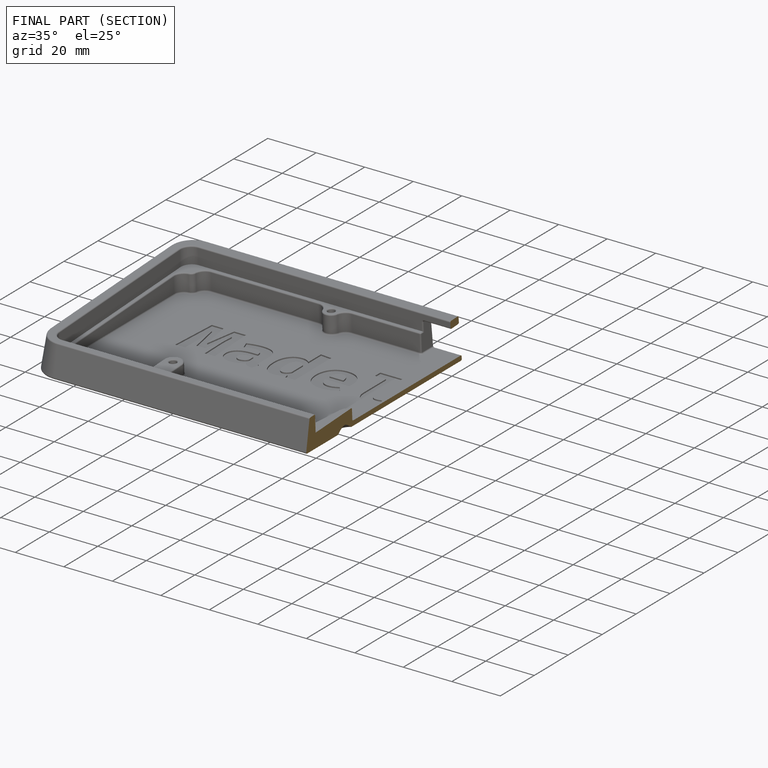
[diagram: finished part — half-section view (interior)]
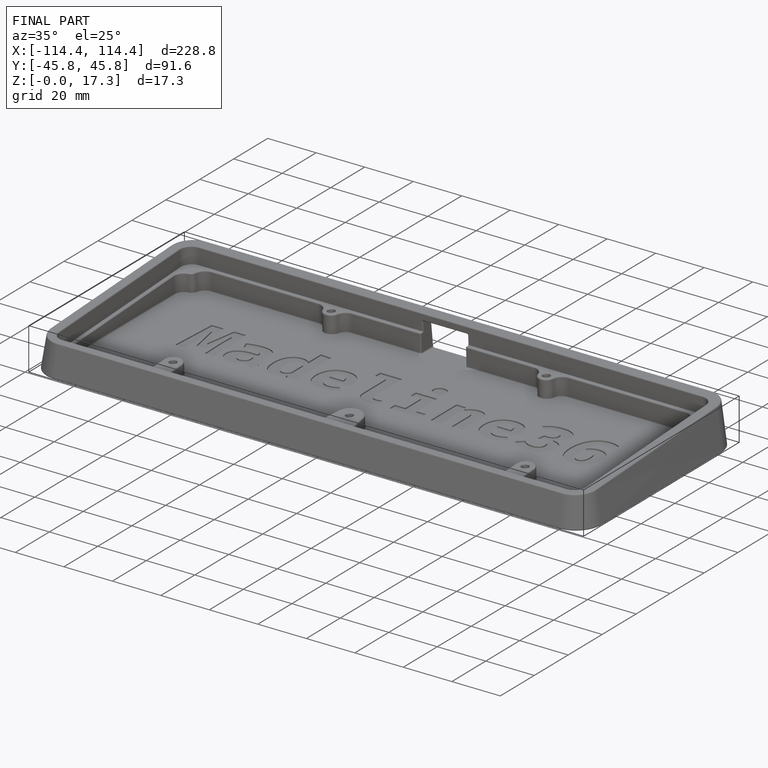
[diagram: finished part — iso view with bounding-box wireframe]
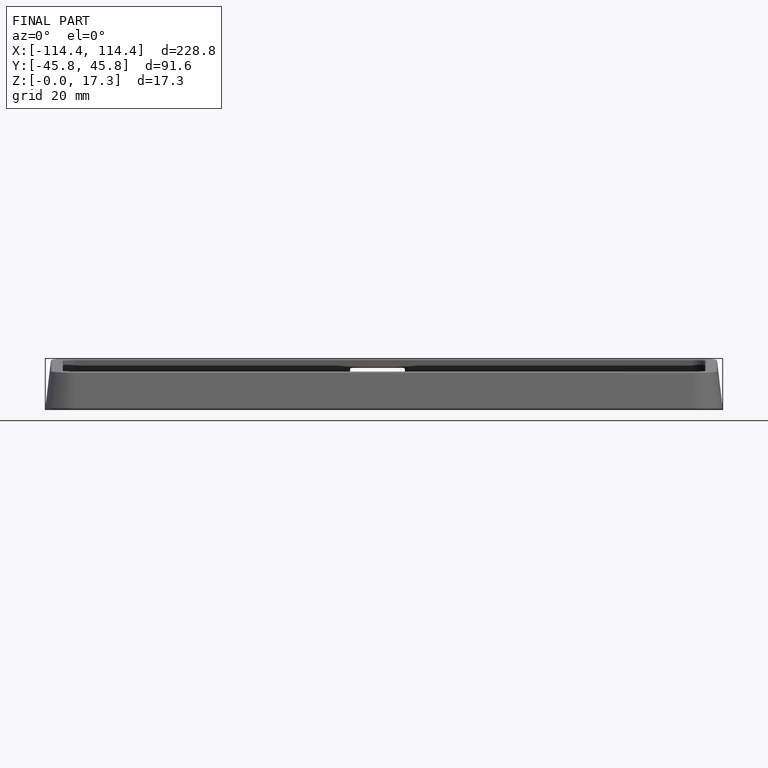
[diagram: finished part — front view with bounding-box wireframe]
